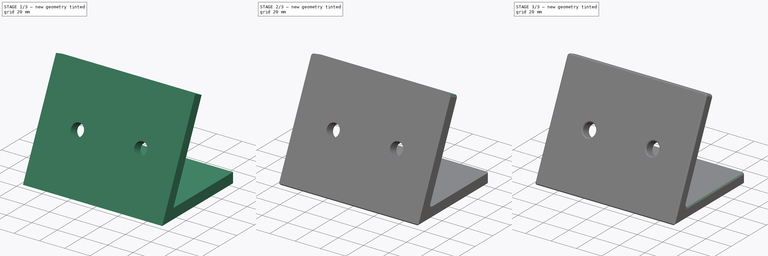
[diagram: build sequence overview — one tinted view per stage of 3, left to right]
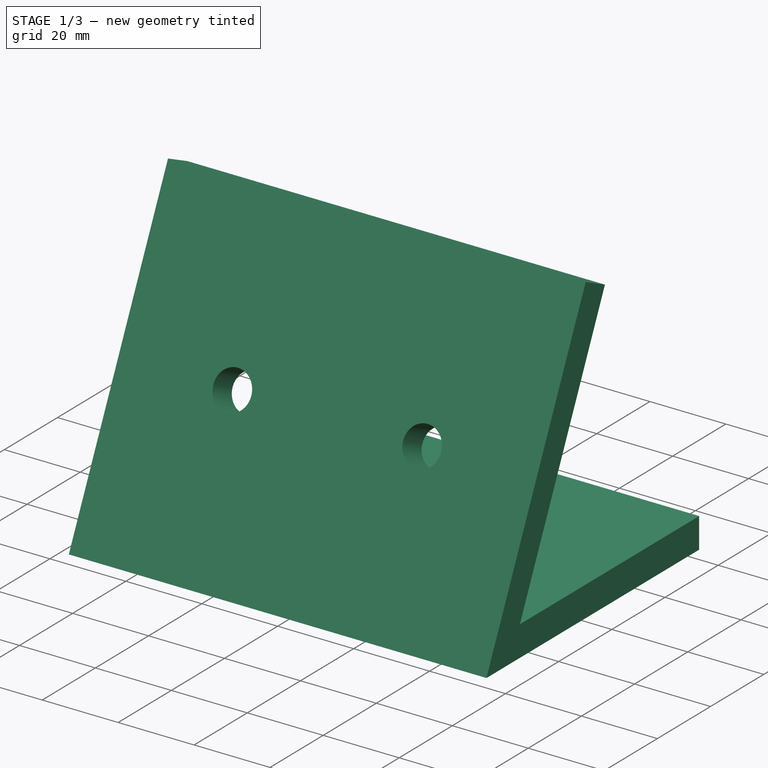
[diagram: stage 1 of 3 — iso view after this stage's code; geometry added in this stage tinted green]
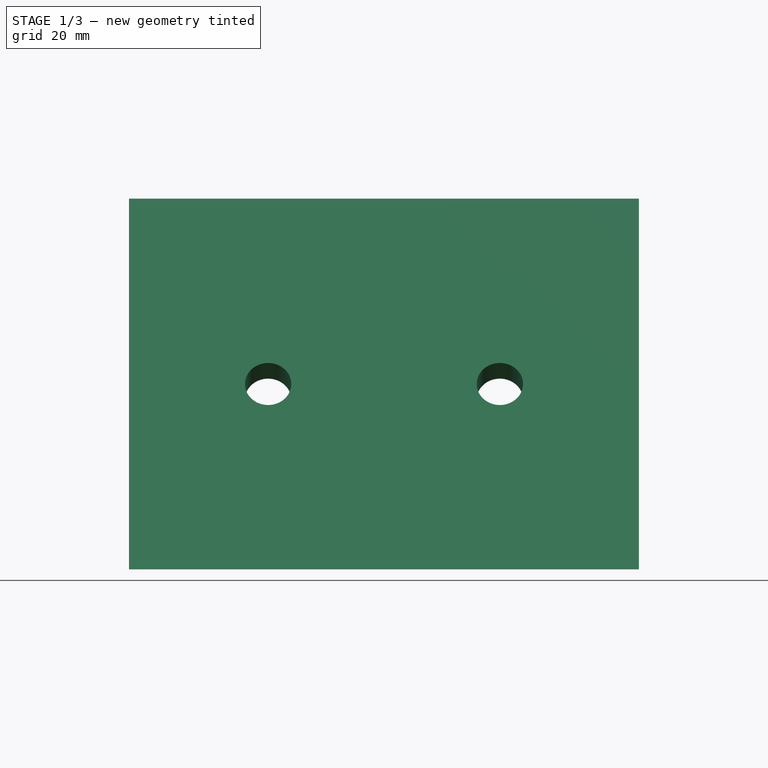
[diagram: stage 1 of 3 — front view after this stage's code; geometry added in this stage tinted green]
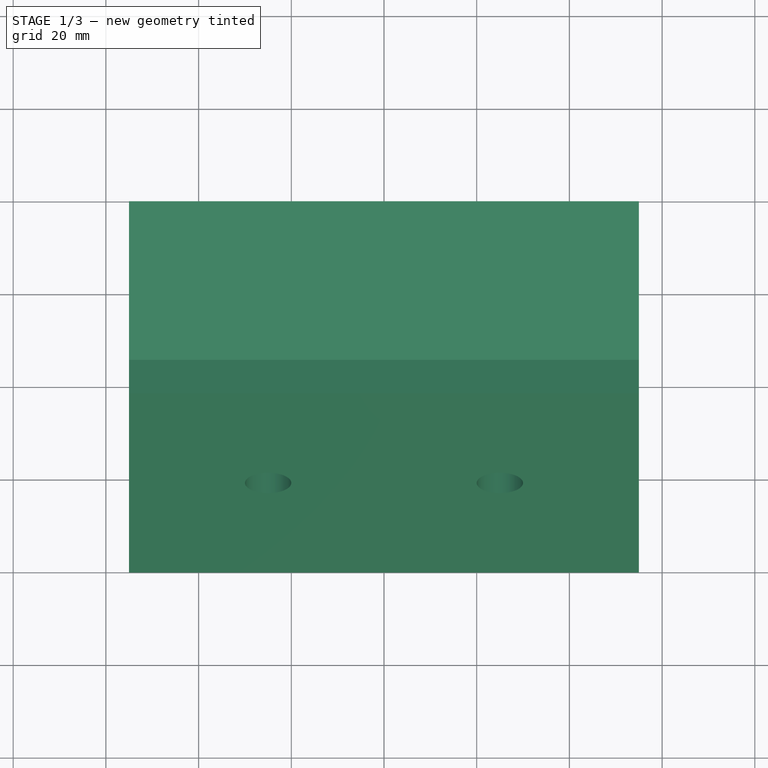
[diagram: stage 1 of 3 — top view after this stage's code; geometry added in this stage tinted green]
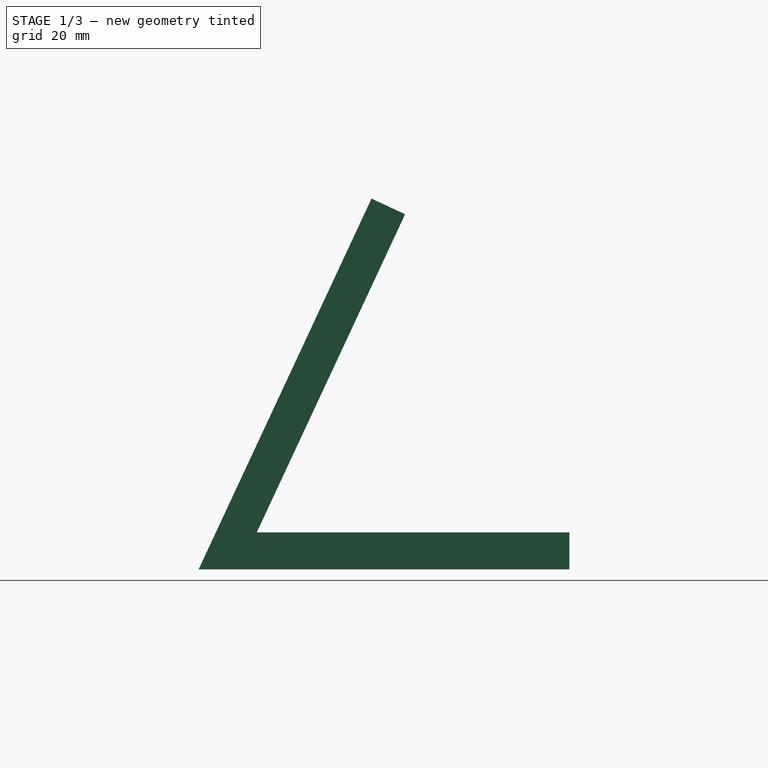
[diagram: stage 1 of 3 — right view after this stage's code; geometry added in this stage tinted green]
FCSTD DOCUMENT  (FreeCAD 0.21R33694 (Git))
Label: holder
License: All rights reserved
LicenseURL: http://en.wikipedia.org/wiki/All_rights_reserved
objects: PartDesign::Fillet×3, PartDesign::Plane×2, Sketcher::SketchObject×2, Spreadsheet::Sheet×1, PartDesign::Pad×1, PartDesign::Pocket×1, PartDesign::Chamfer×1, PartDesign::Body×1
note: 17 computed .brp shape members not serialized (recipe doc carries the construction recipe); baked Part::Feature solids carry a one-line shape summary decoded from their .brp

FEATURE [Spreadsheet::Sheet] Spreadsheet  label="settings"
  cells = A1='Base; C1='Holes; E1='chamfers/fillets; A2='Width; B2(base_width)=110; C2='Diameter; D2(hole_dia)=10; E2='bottom chamfer; F2(bottom_chamfer)=1; A3='Depth; B3(base_depth)=80; C3='Spacing; D3(hole_spacing)=50; E3='back fillet; F3(back_fillet)=2; A4='Height; B4(base_height)=80; E4='back face fillet; F4(back_face_fillet)=1.5; A5='Angle; B5(base_angle)=65; E5='front face fillet; F5(front_face_fillet)=1; A6='Thickness; B6(base_thickness)=8; A9='Calculations; A10='Left plane X; B10(plane_left_X)==base_width / 2; C10='hole height; D10(hole_height)==base_height / 2; E10='Front tan; F10(front_tan)==tan(base_angle); A11='Front plane Z; B11(plane_front_z)==base_depth / 2; E11='front face depth; F11(front_face_depth)==base_height / front_tan; A12='front plane angle; B12(plane_front_angle_y)==-(90 - base_angle); E12='front face length; F12(front_face_length)==sqrt(front_face_depth ^ 2 + base_height ^ 2); E13='front face midpoint; F13(front_face_midpoint)==front_face_length / 2
FEATURE [PartDesign::Plane] DatumPlane  label="right plane"
  AttachmentOffset = pos=(0,0,-55) rot=(0,0,1;0rad)
  Length = 97.8305
  MapMode = 5
  Placement = pos=(-55,1.22e-14,-1.22e-14) rot=(0.57735,0.57735,0.57735;2.0944rad)
  ResizeMode = 0
  Support = -> [YZ_Plane]
  Width = 122.924
  expr: .AttachmentOffset.Base.z = -Spreadsheet.plane_left_X
FEATURE [Sketcher::SketchObject] Sketch
  FullyConstrained = true
  MapMode = 5
  Placement = pos=(-55,1.22e-14,-1.22e-14) rot=(0.57735,0.57735,0.57735;2.0944rad)
  Support = -> [DatumPlane]
  expr: Constraints[10] = <<settings>>.base_depth
  expr: Constraints[11] = <<settings>>.base_height
  expr: Constraints[14] = <<settings>>.base_angle
  expr: Constraints[20] = <<settings>>.base_thickness
  sketch-geometry (10):
    g0: LineSegment StartX=40 StartY=0 StartZ=0 EndX=-40 EndY=0 EndZ=0
    g1: LineSegment StartX=-40 StartY=0 StartZ=0 EndX=-40 EndY=80 EndZ=0
    g2: LineSegment StartX=-40 StartY=80 StartZ=0 EndX=40 EndY=80 EndZ=0
    g3: LineSegment StartX=40 StartY=80 StartZ=0 EndX=40 EndY=0 EndZ=0
    g4: LineSegment StartX=40 StartY=0 StartZ=0 EndX=-40 EndY=0 EndZ=0
    g5: LineSegment StartX=-40 StartY=0 StartZ=0 EndX=-2.69539 EndY=80 EndZ=0
    g6: LineSegment StartX=-2.69539 StartY=80 StartZ=0 EndX=4.55507 EndY=76.6191 EndZ=0
    g7: LineSegment StartX=40 StartY=0 StartZ=0 EndX=40 EndY=8 EndZ=0
    g8: LineSegment StartX=40 StartY=8 StartZ=0 EndX=-27.4425 EndY=8 EndZ=0
    g9: LineSegment StartX=4.55507 StartY=76.6191 StartZ=0 EndX=-27.4425 EndY=8 EndZ=0
  constraints (27):
    c: Coincident(g0,g1)
    c: Coincident(g1,g2)
    c: Coincident(g2,g3)
    c: Coincident(g3,g0)
    c: Horizontal(g0)
    c: Horizontal(g2)
    c: Vertical(g1)
    c: Vertical(g3)
    c: Coincident(g4,g0)
    c: Coincident(g4,g0)
    c: Distance(g4) = 80
    c: Distance(g3) = 80
    c: Coincident(g5,g4)
    c: PointOnObject(g5,g2)
    c: Angle(g4,g5) = 1.13446
    c: Symmetric(g4,g4,g-1)
    c: Coincident(g6,g5)
    c: Angle(g5,g6) = 1.5708
    c: Coincident(g7,g4)
    c: PointOnObject(g7,g3)
    c: Distance(g7) = 8
    c: Coincident(g8,g7)
    c: Horizontal(g8)
    c: Coincident(g9,g6)
    c: Angle(g6,g9) = 1.5708
    c: Coincident(g8,g9)
    c: Equal(g6,g7)
FEATURE [PartDesign::Pad] Pad  label="holder"
  Direction = (1,-1e-16,1e-16)
  Length = 110
  Length2 = 10
  Placement = pos=(-55,1.22e-14,-1.22e-14) rot=(0.57735,0.57735,0.57735;2.0944rad)
  Profile = -> Sketch
  ReferenceAxis = -> Sketch [N_Axis]
  Type = 0
  expr: Length = <<settings>>.base_width
FEATURE [PartDesign::Plane] DatumPlane001  label="front_plane"
  AttachmentOffset = pos=(0,0,40) rot=(-1,0,0;0.436332rad)
  Length = 133.778
  MapMode = 5
  Placement = pos=(0,-40,8.9e-15) rot=(1,0,0;1.13446rad)
  ResizeMode = 0
  Support = -> [XZ_Plane]
  Width = 152.273
  expr: .AttachmentOffset.Base.z = <<settings>>.plane_front_z
  expr: .AttachmentOffset.Rotation.Roll = <<settings>>.plane_front_angle_y
FEATURE [Sketcher::SketchObject] Sketch001  label="hole_sketch"
  FullyConstrained = true
  MapMode = 5
  Placement = pos=(0,-40,7.1e-15) rot=(1,0,0;1.13446rad)
  Support = -> [DatumPlane001]
  expr: Constraints[4] = <<settings>>.front_face_midpoint
  expr: Constraints[5] = <<settings>>.hole_spacing
  expr: Constraints[9] = <<settings>>.hole_dia
  sketch-geometry (4):
    g0: LineSegment StartX=0 StartY=0 StartZ=0 EndX=0 EndY=44.1351 EndZ=0
    g1: LineSegment StartX=-25 StartY=44.1351 StartZ=0 EndX=25 EndY=44.1351 EndZ=0
    g2: Circle CenterX=-25 CenterY=44.1351 CenterZ=0 NormalX=0 NormalY=0 NormalZ=1 AngleXU=0 Radius=5
    g3: Circle CenterX=25 CenterY=44.1351 CenterZ=0 NormalX=0 NormalY=0 NormalZ=1 AngleXU=0 Radius=5
  constraints (10):
    c: Coincident(g0,g-1)
    c: PointOnObject(g0,g-2)
    c: Horizontal(g1)
    c: Symmetric(g1,g1,g0)
    c: Distance(g0) = 44.1351
    c: Distance(g1) = 50
    c: Coincident(g2,g1)
    c: Coincident(g3,g1)
    c: Equal(g3,g2)
    c: Diameter(g3) = 10
FEATURE [PartDesign::Pocket] Pocket  label="bearing_holes"
  BaseFeature = -> Pad
  Direction = (0,0.906308,-0.422618)
  Length = 0
  Length2 = 5
  Placement = pos=(-55,1.22e-14,-1.22e-14) rot=(0.57735,0.57735,0.57735;2.0944rad)
  Profile = -> Sketch001
  ReferenceAxis = -> Sketch001 [N_Axis]
  Type = 3
  UpToFace = -> Pad [Face4]
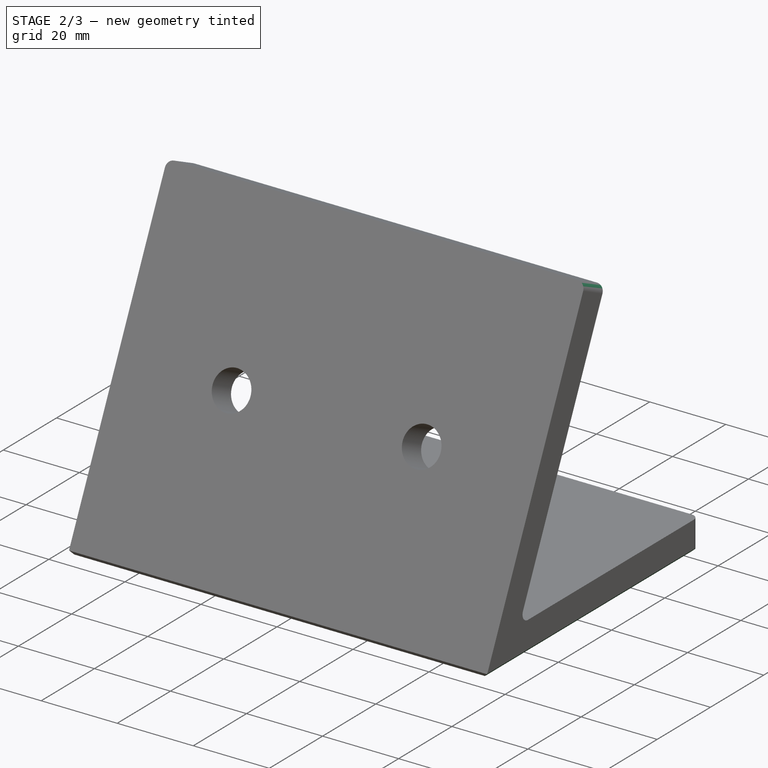
[diagram: stage 2 of 3 — iso view after this stage's code; geometry added in this stage tinted green]
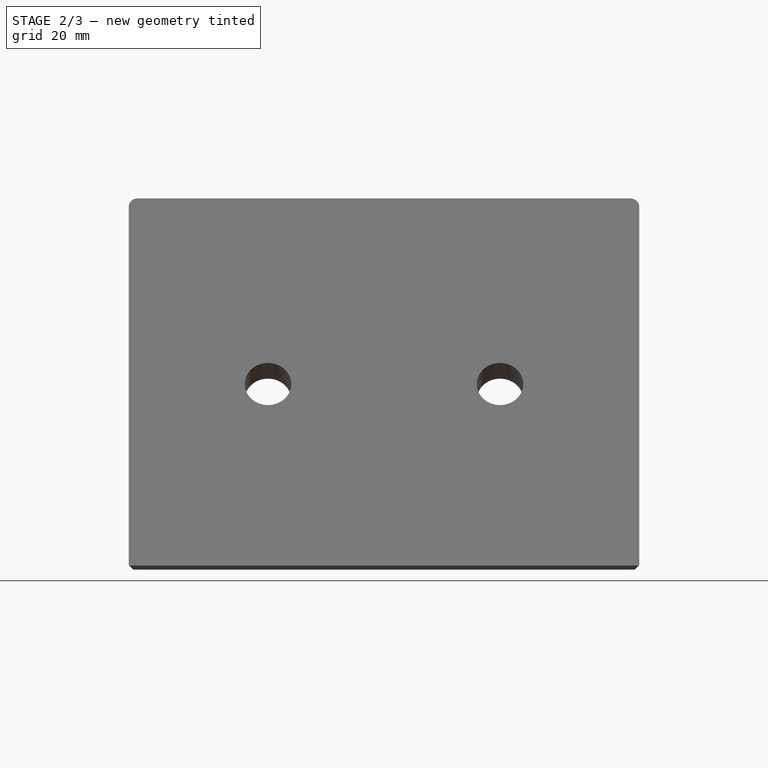
[diagram: stage 2 of 3 — front view after this stage's code; geometry added in this stage tinted green]
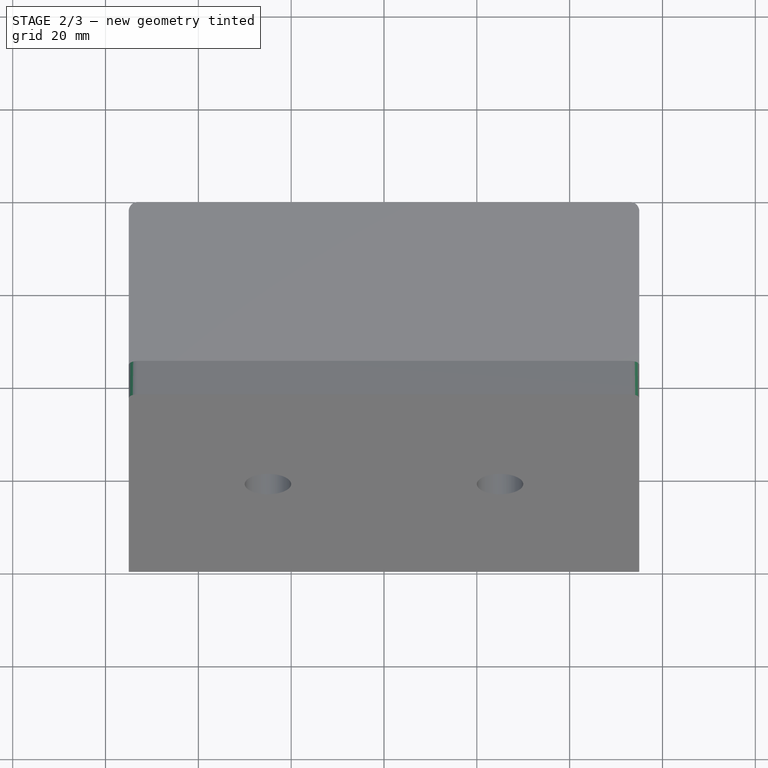
[diagram: stage 2 of 3 — top view after this stage's code; geometry added in this stage tinted green]
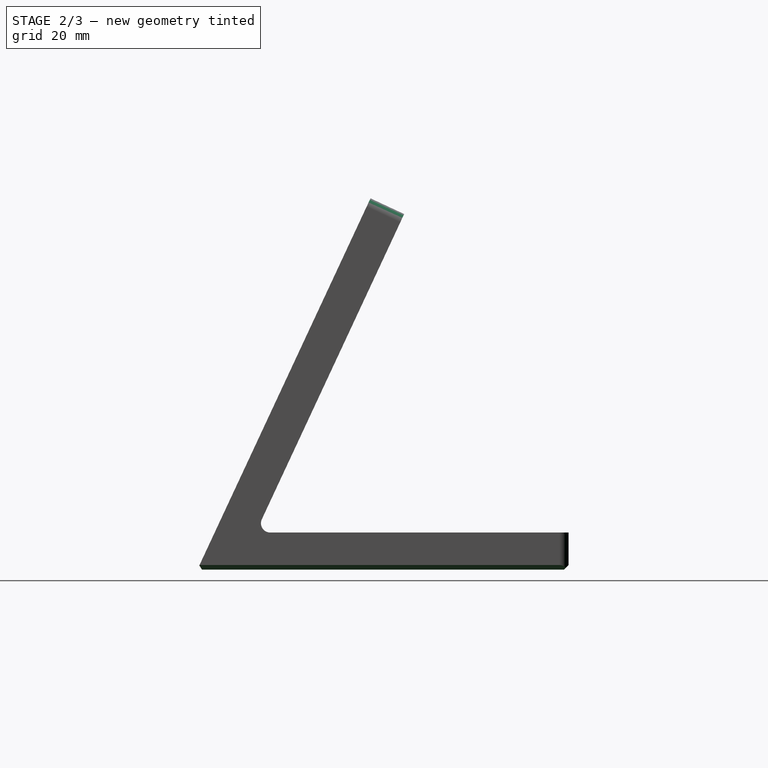
[diagram: stage 2 of 3 — right view after this stage's code; geometry added in this stage tinted green]
FEATURE [PartDesign::Chamfer] Chamfer  label="bottom_chamfer"
  Angle = 45
  Base = -> Pocket [Edge4,Edge3,Edge1,Edge2]
  BaseFeature = -> Pocket
  ChamferType = 0
  FlipDirection = false
  Placement = pos=(-55,1.22e-14,-1.22e-14) rot=(0.57735,0.57735,0.57735;2.0944rad)
  Size = 1
  Size2 = 1
  SupportTransform = false
  UseAllEdges = false
  expr: Size = <<settings>>.bottom_chamfer
FEATURE [PartDesign::Fillet] Fillet  label="back_fillets"
  Base = -> Chamfer [Edge24,Edge20,Edge34,Edge21,Edge26]
  BaseFeature = -> Chamfer
  Placement = pos=(-55,1.22e-14,-1.22e-14) rot=(0.57735,0.57735,0.57735;2.0944rad)
  Radius = 2
  SupportTransform = false
  UseAllEdges = false
  expr: Radius = <<settings>>.back_fillet
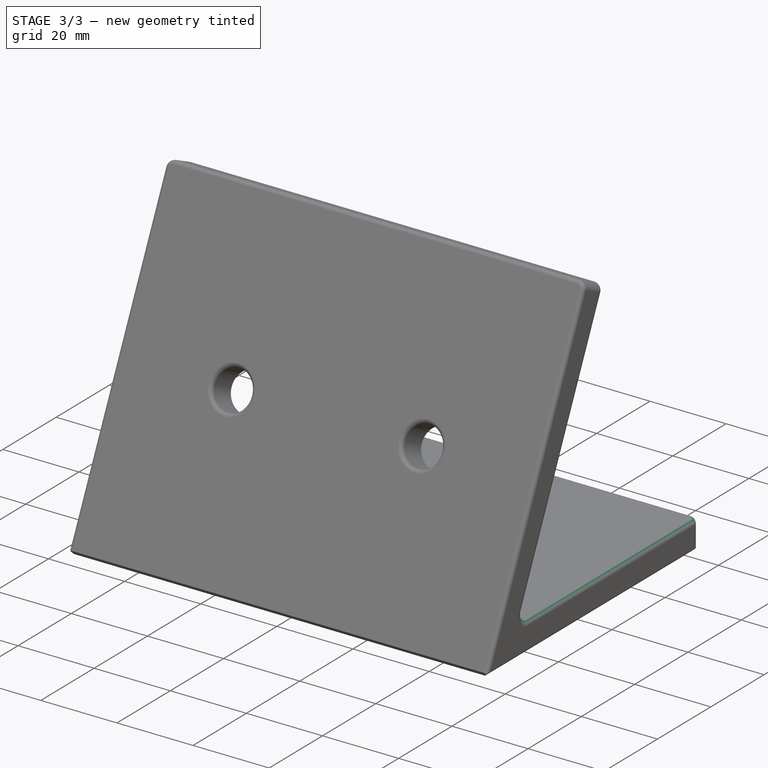
[diagram: stage 3 of 3 — iso view after this stage's code; geometry added in this stage tinted green]
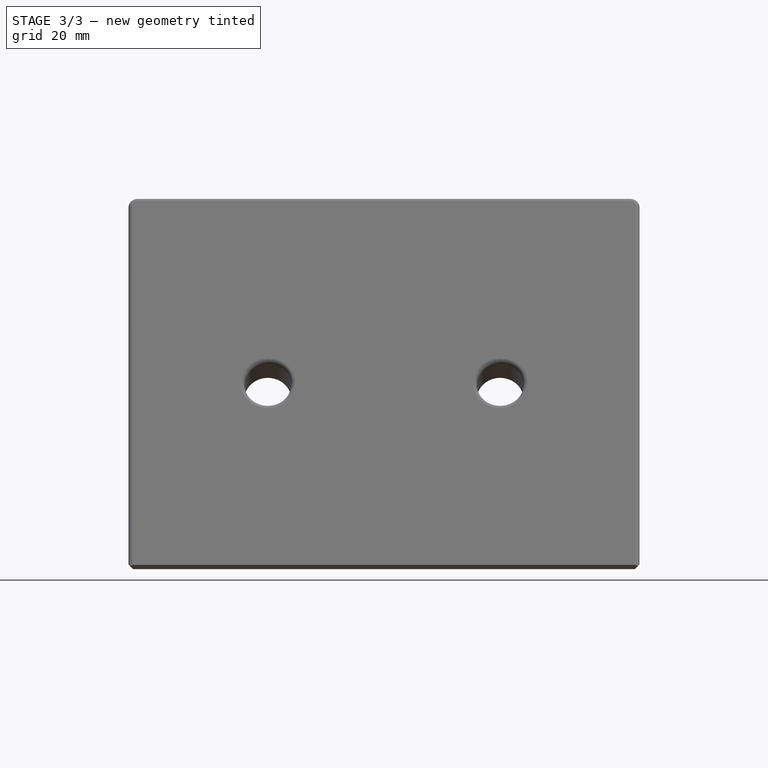
[diagram: stage 3 of 3 — front view after this stage's code; geometry added in this stage tinted green]
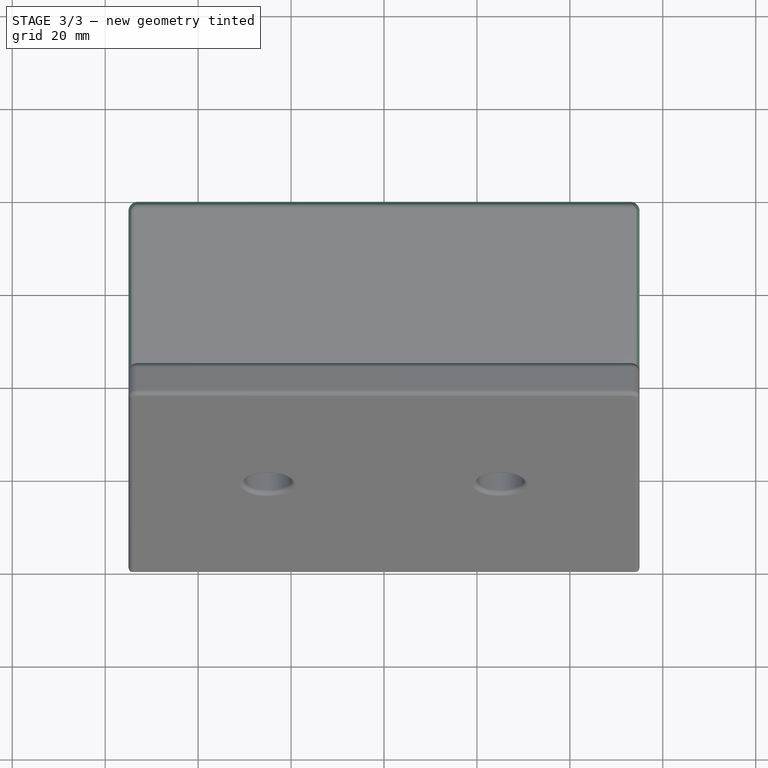
[diagram: stage 3 of 3 — top view after this stage's code; geometry added in this stage tinted green]
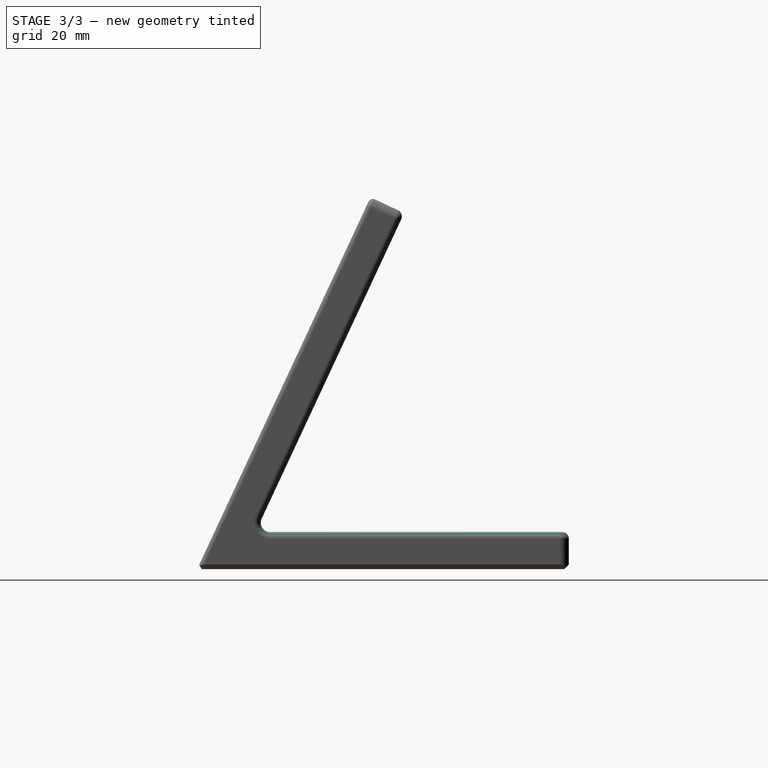
[diagram: stage 3 of 3 — right view after this stage's code; geometry added in this stage tinted green]
FEATURE [PartDesign::Fillet] Fillet001  label="back_face_fillet"
  Base = -> Fillet [Edge41]
  BaseFeature = -> Fillet
  Placement = pos=(-55,1.22e-14,-1.22e-14) rot=(0.57735,0.57735,0.57735;2.0944rad)
  Radius = 1.5
  SupportTransform = false
  UseAllEdges = false
  expr: Radius = <<settings>>.back_face_fillet
FEATURE [PartDesign::Fillet] Fillet002  label="front_face_fillet"
  Base = -> Fillet001 [Edge37,Edge36,Edge34]
  BaseFeature = -> Fillet001
  Placement = pos=(-55,1.22e-14,-1.22e-14) rot=(0.57735,0.57735,0.57735;2.0944rad)
  Radius = 1
  SupportTransform = false
  UseAllEdges = false
  expr: Radius = <<settings>>.front_face_fillet
FEATURE [PartDesign::Body] Body  label="base"
  Group = -> [DatumPlane,Sketch,Pad,DatumPlane001,Sketch001,Pocket,Chamfer,Fillet,Fillet001,Fillet002]
  Origin = -> Origin
  Tip = -> Fillet002
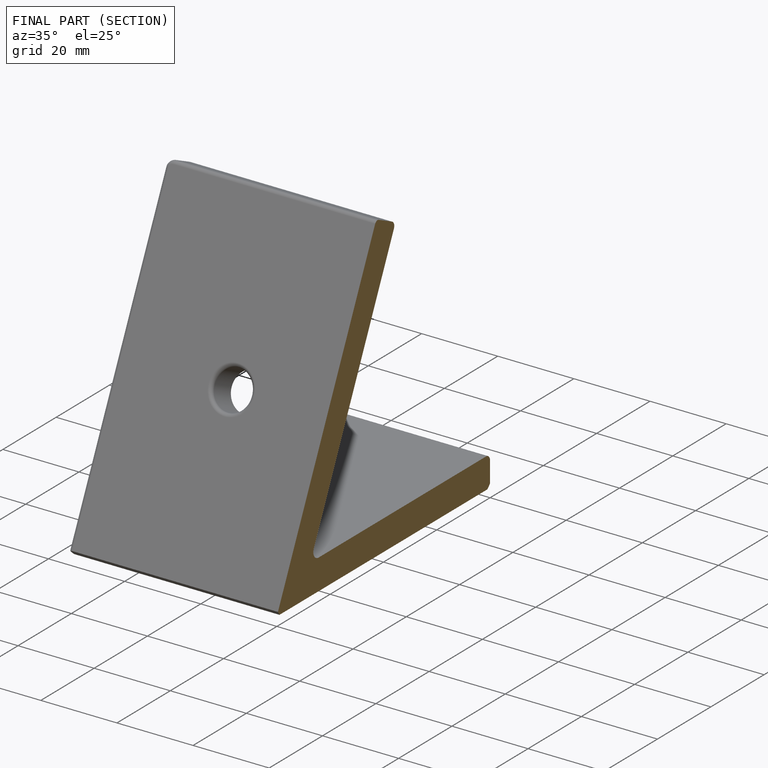
[diagram: finished part — half-section view (interior)]
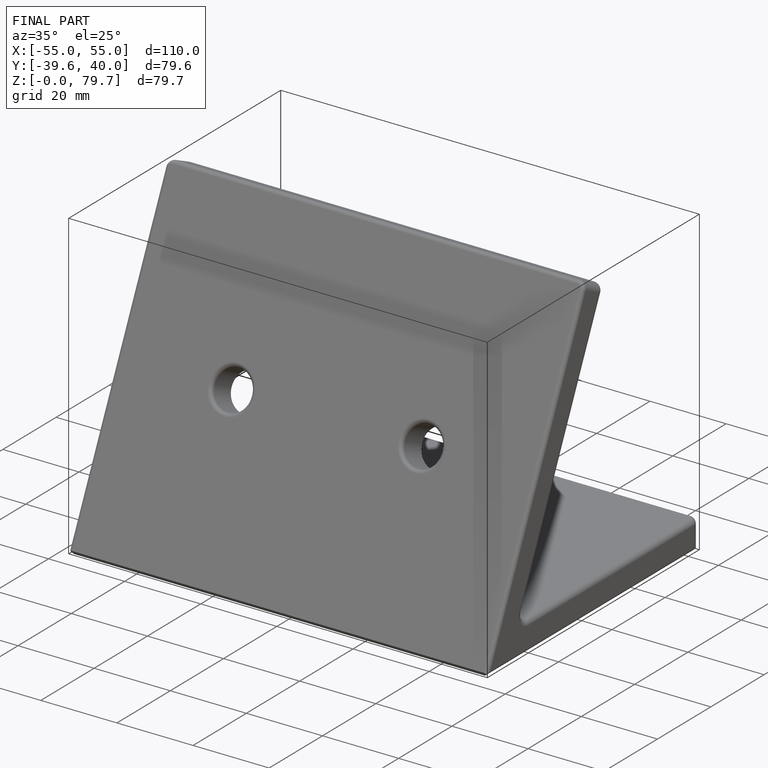
[diagram: finished part — iso view with bounding-box wireframe]
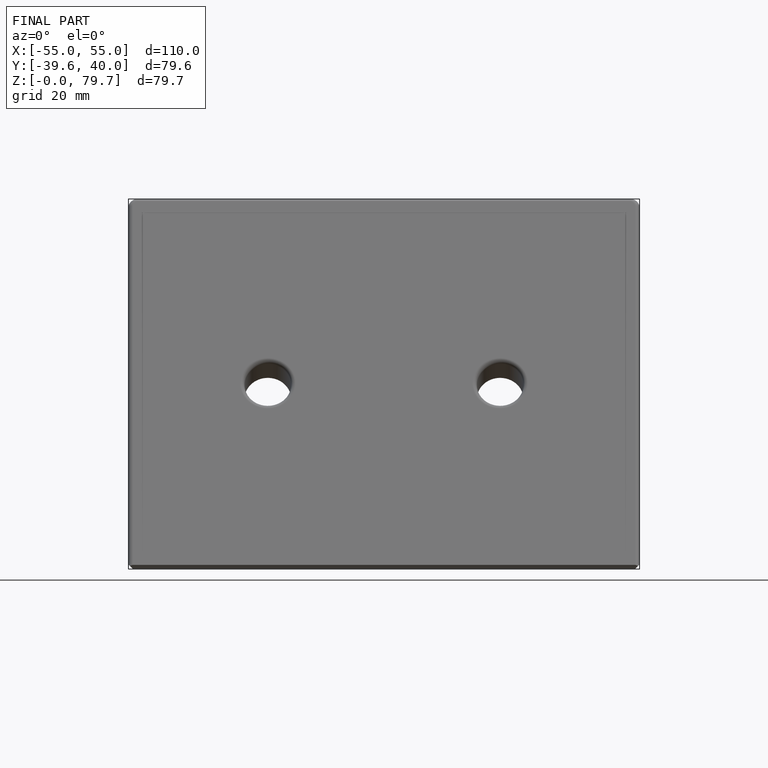
[diagram: finished part — front view with bounding-box wireframe]
